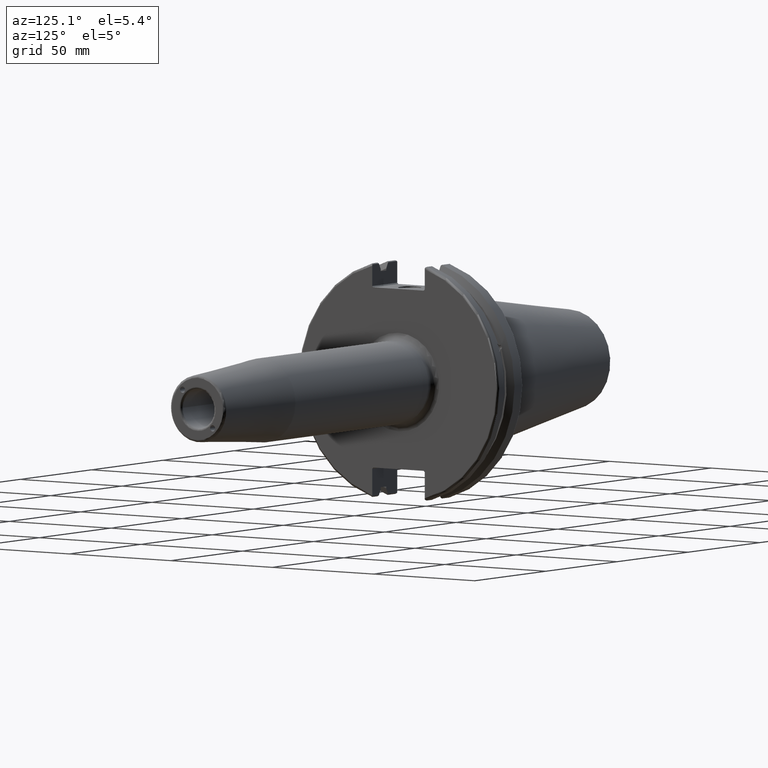
[diagram: clean part render]
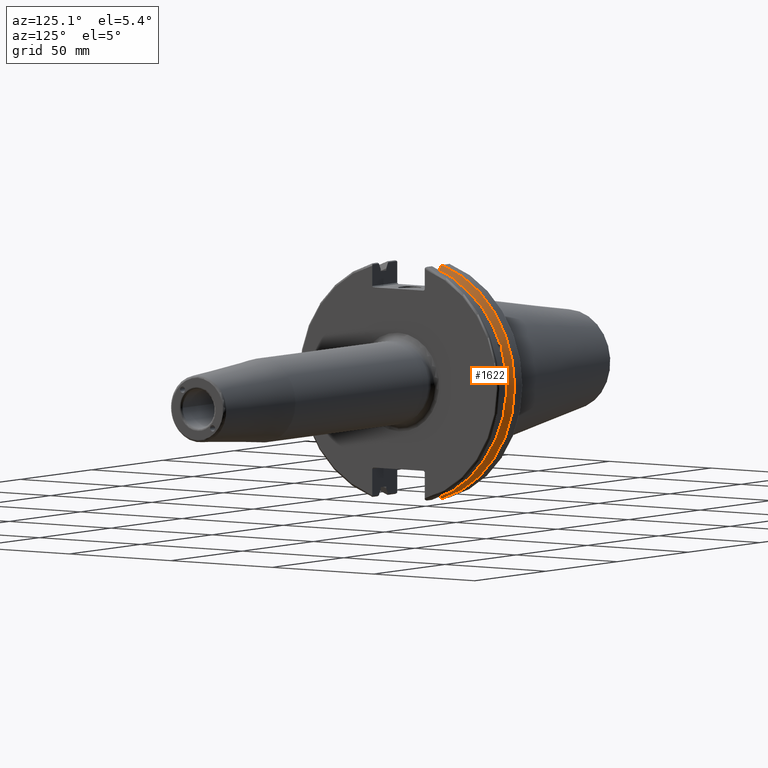
[diagram: same view with one face highlighted and labeled with its STEP entity id]
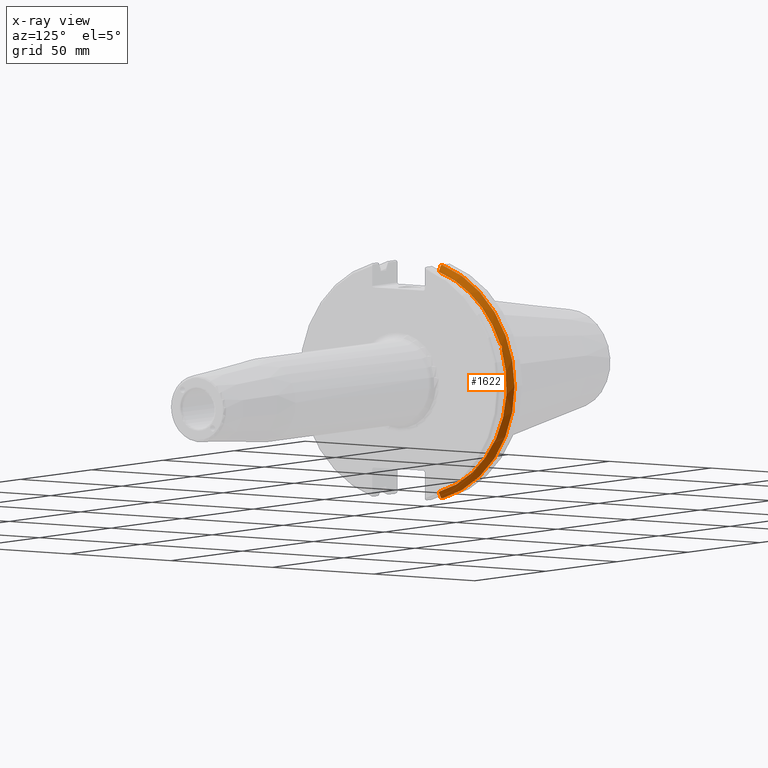
[diagram: x-ray of the same camera — body ghosted, the highlighted face saturated]
A machine part, auxiliary view. The second image highlights one B-rep face of the part: STEP entity #1622.
The next image is the same camera in x-ray: the body ghosted, the highlighted face saturated — about 0% of this face is hidden behind the body in this view.
In plain terms, the highlighted conical surface has half-angle 60 deg.
Its self-contained STEP definition (entity closure, byte-faithful):
#19=(
BOUNDED_CURVE()
B_SPLINE_CURVE(2,(#2957,#2958,#2959),.UNSPECIFIED.,.F.,.F.)
B_SPLINE_CURVE_WITH_KNOTS((3,3),(0.,0.275823910675102),.UNSPECIFIED.)
CURVE()
GEOMETRIC_REPRESENTATION_ITEM()
RATIONAL_B_SPLINE_CURVE((1.,1.00038235574738,1.00012873636872))
REPRESENTATION_ITEM('')
);
#20=(
BOUNDED_CURVE()
B_SPLINE_CURVE(2,(#2961,#2962,#2963),.UNSPECIFIED.,.F.,.F.)
B_SPLINE_CURVE_WITH_KNOTS((3,3),(0.,0.0648240472898322),.UNSPECIFIED.)
CURVE()
GEOMETRIC_REPRESENTATION_ITEM()
RATIONAL_B_SPLINE_CURVE((1.,1.00011477674848,1.00019140645967))
REPRESENTATION_ITEM('')
);
#21=(
BOUNDED_CURVE()
B_SPLINE_CURVE(2,(#2967,#2968,#2969),.UNSPECIFIED.,.F.,.F.)
B_SPLINE_CURVE_WITH_KNOTS((3,3),(0.325260944932408,0.390084992222205),
 .UNSPECIFIED.)
CURVE()
GEOMETRIC_REPRESENTATION_ITEM()
RATIONAL_B_SPLINE_CURVE((1.00019140645971,1.0001147767485,1.))
REPRESENTATION_ITEM('')
);
#22=(
BOUNDED_CURVE()
B_SPLINE_CURVE(2,(#2971,#2972,#2973),.UNSPECIFIED.,.F.,.F.)
B_SPLINE_CURVE_WITH_KNOTS((3,3),(0.0558332664489249,0.331657177124507),
 .UNSPECIFIED.)
CURVE()
GEOMETRIC_REPRESENTATION_ITEM()
RATIONAL_B_SPLINE_CURVE((1.00012873637293,1.00038235575989,1.))
REPRESENTATION_ITEM('')
);
#121=B_SPLINE_CURVE_WITH_KNOTS('',3,(#2910,#2911,#2912,#2913,#2914,#2915,
#2916,#2917,#2918,#2919,#2920,#2921,#2922,#2923),.UNSPECIFIED.,.F.,.F.,
(4,2,2,2,2,2,4),(0.426712868358715,0.441644498666905,0.480313313223129,
0.518982127779352,0.557650942335576,0.5963197568918,0.61125138719999),
 .UNSPECIFIED.);
#211=FACE_OUTER_BOUND('',#318,.T.);
#318=EDGE_LOOP('',(#1273,#1274,#1275,#1276,#1277,#1278,#1279,#1280));
#626=CIRCLE('',#1787,46.4219772964944);
#627=CIRCLE('',#1788,49.2125);
#628=CIRCLE('',#1789,46.4219772964944);
#751=VERTEX_POINT('',#2907);
#752=VERTEX_POINT('',#2909);
#756=VERTEX_POINT('',#2954);
#757=VERTEX_POINT('',#2956);
#758=VERTEX_POINT('',#2960);
#759=VERTEX_POINT('',#2964);
#760=VERTEX_POINT('',#2966);
#761=VERTEX_POINT('',#2970);
#944=EDGE_CURVE('',#752,#751,#121,.T.);
#949=EDGE_CURVE('',#756,#751,#626,.T.);
#950=EDGE_CURVE('',#756,#757,#19,.T.);
#951=EDGE_CURVE('',#758,#757,#20,.T.);
#952=EDGE_CURVE('',#758,#759,#627,.T.);
#953=EDGE_CURVE('',#760,#759,#21,.T.);
#954=EDGE_CURVE('',#760,#761,#22,.T.);
#955=EDGE_CURVE('',#752,#761,#628,.T.);
#1273=ORIENTED_EDGE('',*,*,#944,.T.);
#1274=ORIENTED_EDGE('',*,*,#949,.F.);
#1275=ORIENTED_EDGE('',*,*,#950,.T.);
#1276=ORIENTED_EDGE('',*,*,#951,.F.);
#1277=ORIENTED_EDGE('',*,*,#952,.T.);
#1278=ORIENTED_EDGE('',*,*,#953,.F.);
#1279=ORIENTED_EDGE('',*,*,#954,.T.);
#1280=ORIENTED_EDGE('',*,*,#955,.F.);
#1575=CONICAL_SURFACE('',#1786,47.8172386482472,1.0471975511966);
#1622=ADVANCED_FACE('',(#211),#1575,.T.);
#1786=AXIS2_PLACEMENT_3D('',#2953,#2098,#2099);
#1787=AXIS2_PLACEMENT_3D('',#2955,#2100,#2101);
#1788=AXIS2_PLACEMENT_3D('',#2965,#2102,#2103);
#1789=AXIS2_PLACEMENT_3D('',#2974,#2104,#2105);
#2098=DIRECTION('center_axis',(-1.,0.,0.));
#2099=DIRECTION('ref_axis',(0.,1.,0.));
#2100=DIRECTION('center_axis',(1.,0.,0.));
#2101=DIRECTION('ref_axis',(0.,0.,-1.));
#2102=DIRECTION('center_axis',(1.,0.,0.));
#2103=DIRECTION('ref_axis',(0.,0.,-1.));
#2104=DIRECTION('center_axis',(1.,0.,0.));
#2105=DIRECTION('ref_axis',(0.,0.,-1.));
#2907=CARTESIAN_POINT('',(9.21200000000001,43.9096390749305,15.0646464421033));
#2909=CARTESIAN_POINT('',(9.21200000000001,43.3201030900029,16.684383248648));
#2910=CARTESIAN_POINT('Ctrl Pts',(9.21200000000001,43.3201030900029,16.684383248648));
#2911=CARTESIAN_POINT('Ctrl Pts',(9.19501843903392,43.3613106941341,16.6592273018006));
#2912=CARTESIAN_POINT('Ctrl Pts',(9.17898675403322,43.4012416983557,16.6326763251437));
#2913=CARTESIAN_POINT('Ctrl Pts',(9.12528673845037,43.5391037343221,16.5325130832407));
#2914=CARTESIAN_POINT('Ctrl Pts',(9.08911610663555,43.6406982153492,16.441180795372));
#2915=CARTESIAN_POINT('Ctrl Pts',(9.03980868251975,43.8110833825828,16.2291323464528));
#2916=CARTESIAN_POINT('Ctrl Pts',(9.02699999999999,43.8794096049169,16.10796730316));
#2917=CARTESIAN_POINT('Ctrl Pts',(9.02699999999999,43.9675796948952,15.8657219718732));
#2918=CARTESIAN_POINT('Ctrl Pts',(9.03980868251975,43.9931221605126,15.7289849146254));
#2919=CARTESIAN_POINT('Ctrl Pts',(9.08911610663555,43.9989016655819,15.4570249042868));
#2920=CARTESIAN_POINT('Ctrl Pts',(9.12528673845037,43.9797830409459,15.3217566390709));
#2921=CARTESIAN_POINT('Ctrl Pts',(9.17898675403323,43.9385582852181,15.1564111356409));
#2922=CARTESIAN_POINT('Ctrl Pts',(9.19501843903392,43.9250360001461,15.1104047527575));
#2923=CARTESIAN_POINT('Ctrl Pts',(9.21200000000001,43.9096390749305,15.0646464421033));
#2953=CARTESIAN_POINT('Origin',(8.40644548297565,0.,0.));
#2954=CARTESIAN_POINT('',(9.21200000000001,12.95,-44.5791147973605));
#2955=CARTESIAN_POINT('Origin',(9.21200000000001,0.,0.));
#2956=CARTESIAN_POINT('',(7.87928960562425,12.95,-46.9780755322918));
#2957=CARTESIAN_POINT('Ctrl Pts',(9.21200000000001,12.95,-44.5791147973604));
#2958=CARTESIAN_POINT('Ctrl Pts',(8.56310449055697,12.95,-45.7494966802177));
#2959=CARTESIAN_POINT('Ctrl Pts',(7.87928960562425,12.95,-46.9780755322917));
#2960=CARTESIAN_POINT('',(7.60089096595127,13.4317035994433,-47.3440544806494));
#2961=CARTESIAN_POINT('Ctrl Pts',(7.60089096595127,13.4317035994433,-47.3440544806494));
#2962=CARTESIAN_POINT('Ctrl Pts',(7.74116896663818,13.1896660169966,-47.1601640966265));
#2963=CARTESIAN_POINT('Ctrl Pts',(7.87928960562425,12.95,-46.9780755322918));
#2964=CARTESIAN_POINT('',(7.60089096595127,13.4317035994433,47.3440544806494));
#2965=CARTESIAN_POINT('Origin',(7.60089096595127,0.,0.));
#2966=CARTESIAN_POINT('',(7.87928960562425,12.95,46.9780755322918));
#2967=CARTESIAN_POINT('Ctrl Pts',(7.87928960562425,12.95,46.9780755322918));
#2968=CARTESIAN_POINT('Ctrl Pts',(7.7411689666382,13.1896660169966,47.1601640966265));
#2969=CARTESIAN_POINT('Ctrl Pts',(7.60089096595127,13.4317035994434,47.3440544806494));
#2970=CARTESIAN_POINT('',(9.21200000000001,12.95,44.5791147973604));
#2971=CARTESIAN_POINT('Ctrl Pts',(7.87928960562425,12.95,46.9780755322918));
#2972=CARTESIAN_POINT('Ctrl Pts',(8.56310449055437,12.95,45.7494966802224));
#2973=CARTESIAN_POINT('Ctrl Pts',(9.21200000000001,12.95,44.5791147973604));
#2974=CARTESIAN_POINT('Origin',(9.21200000000001,0.,0.));